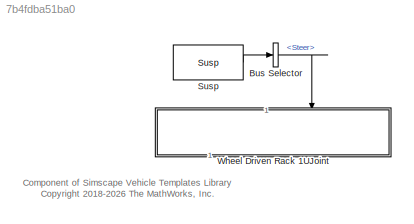
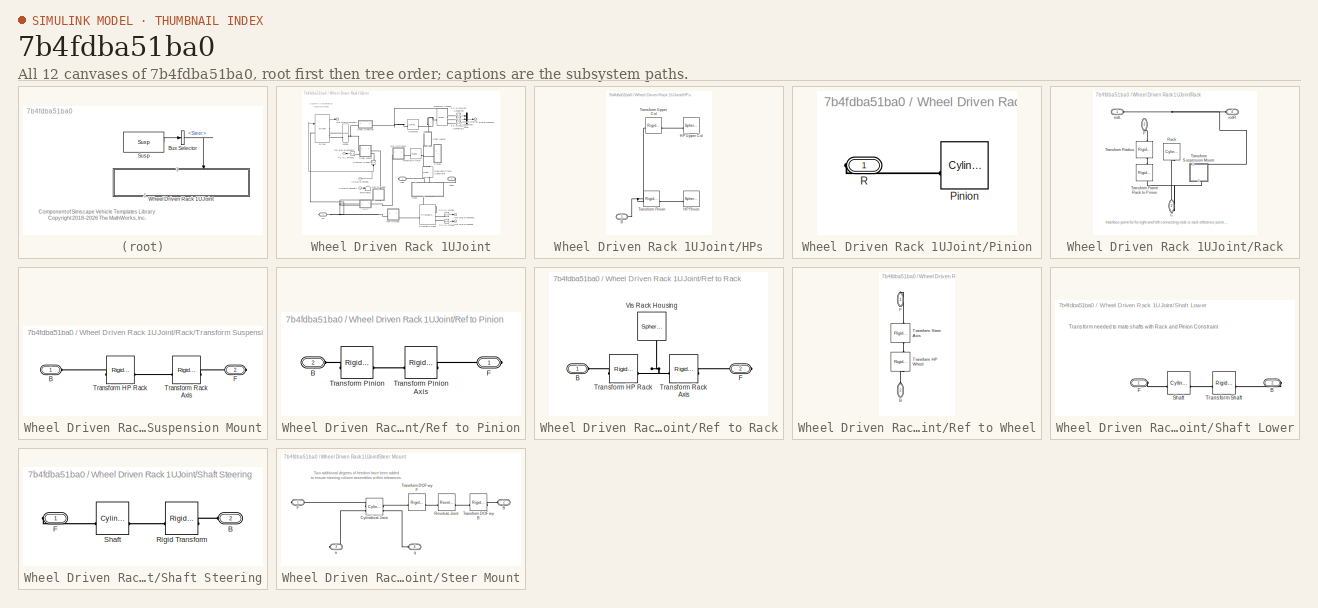
[diagram: thumbnail index - all 12 canvases of the model, root first then tree order]
MODEL slx_7b4fdba51ba0
KIND library
CONFIG AbsTol = auto
CONFIG EnableMultiTasking = off
CONFIG FixedStep = auto
CONFIG MaxStep = auto
CONFIG MinStep = auto
CONFIG RelTol = 1e-3
CONFIG SampleTimeConstraint = Unconstrained
CONFIG SolverName = VariableStepAuto
CONFIG StartTime = 0.0
CONFIG StopTime = 10.0
BLOCK [BusSelector] Bus Selector
  OutputSignals = Steer
BLOCK [Reference] Susp  REF=Vehicle_Inputs/Control Bus/Susp
  SourceBlock = Vehicle_Inputs/Control Bus/Susp
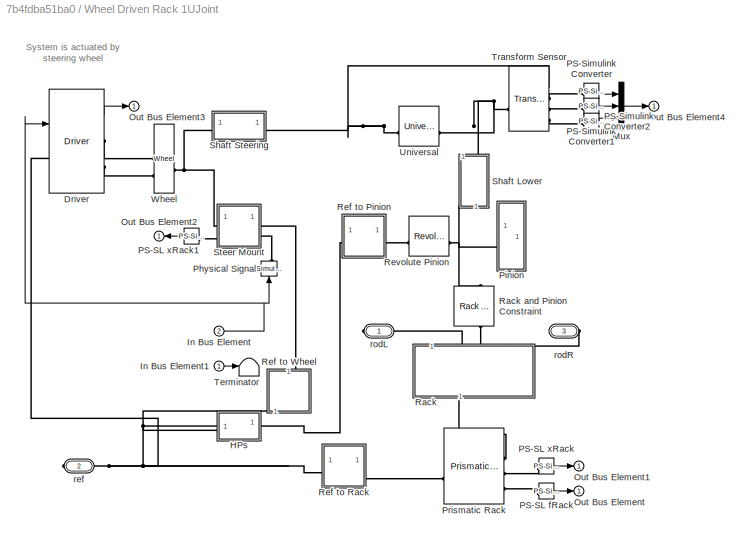
BLOCK [SubSystem] Wheel Driven Rack 1UJoint
  NameLocation = left
  Tag = PublishSubsystem
  VariantControl = Rack
BLOCK [Reference] Wheel Driven Rack 1UJoint/Driver  REF=Linkage/Susp/Linkage/Steer/Wheel
Driven
Rack
1UJoint1/Driver
  AttributesFormatString = %<LabelModeActiveChoice>
  SourceBlock = Linkage/Susp/Linkage/Steer/Wheel\nDriven\nRack\n1UJoint1/Driver
BLOCK [SubSystem] Wheel Driven Rack 1UJoint/HPs
BLOCK [PMIOPort] Wheel Driven Rack 1UJoint/HPs/B
  Side = Left
BLOCK [Reference] Wheel Driven Rack 1UJoint/HPs/HP Pinion  REF=sm_lib/Body Elements/Spherical Solid
  SourceBlock = sm_lib/Body Elements/Spherical Solid
  SourceType = Spherical Solid
BLOCK [Reference] Wheel Driven Rack 1UJoint/HPs/HP Upper Col  REF=sm_lib/Body Elements/Spherical Solid
  SourceBlock = sm_lib/Body Elements/Spherical Solid
  SourceType = Spherical Solid
BLOCK [Reference] Wheel Driven Rack 1UJoint/HPs/Transform Pinion  REF=sm_lib/Frames and
Transforms/Rigid
Transform
  SourceBlock = sm_lib/Frames and\nTransforms/Rigid\nTransform
  SourceType = Rigid\nTransform
BLOCK [Reference] Wheel Driven Rack 1UJoint/HPs/Transform Upper Col  REF=sm_lib/Frames and
Transforms/Rigid
Transform
  SourceBlock = sm_lib/Frames and\nTransforms/Rigid\nTransform
  SourceType = Rigid\nTransform
BLOCK [Inport] Wheel Driven Rack 1UJoint/In Bus Element
  Port = 2
BLOCK [Inport] Wheel Driven Rack 1UJoint/In Bus Element1
BLOCK [Mux] Wheel Driven Rack 1UJoint/Mux
  DisplayOption = bar
  Inputs = 3
BLOCK [Outport] Wheel Driven Rack 1UJoint/Out Bus Element
  VectorParamsAs1DForOutWhenUnconnected = off
BLOCK [Outport] Wheel Driven Rack 1UJoint/Out Bus Element1
  VectorParamsAs1DForOutWhenUnconnected = off
BLOCK [Outport] Wheel Driven Rack 1UJoint/Out Bus Element2
  VectorParamsAs1DForOutWhenUnconnected = off
BLOCK [Outport] Wheel Driven Rack 1UJoint/Out Bus Element3
  VectorParamsAs1DForOutWhenUnconnected = off
BLOCK [Outport] Wheel Driven Rack 1UJoint/Out Bus Element4
  VectorParamsAs1DForOutWhenUnconnected = off
BLOCK [Reference] Wheel Driven Rack 1UJoint/PS-SL fRack  REF=nesl_utility/PS-Simulink
Converter
  SourceBlock = nesl_utility/PS-Simulink\nConverter
  SourceType = PS-Simulink\nConverter
BLOCK [Reference] Wheel Driven Rack 1UJoint/PS-SL xRack  REF=nesl_utility/PS-Simulink
Converter
  SourceBlock = nesl_utility/PS-Simulink\nConverter
  SourceType = PS-Simulink\nConverter
BLOCK [Reference] Wheel Driven Rack 1UJoint/PS-SL xRack1  REF=nesl_utility/PS-Simulink
Converter
  SourceBlock = nesl_utility/PS-Simulink\nConverter
  SourceType = PS-Simulink\nConverter
BLOCK [Reference] Wheel Driven Rack 1UJoint/PS-Simulink Converter  REF=nesl_utility/PS-Simulink
Converter
  SourceBlock = nesl_utility/PS-Simulink\nConverter
  SourceType = PS-Simulink\nConverter
BLOCK [Reference] Wheel Driven Rack 1UJoint/PS-Simulink Converter1  REF=nesl_utility/PS-Simulink
Converter
  SourceBlock = nesl_utility/PS-Simulink\nConverter
  SourceType = PS-Simulink\nConverter
BLOCK [Reference] Wheel Driven Rack 1UJoint/PS-Simulink Converter2  REF=nesl_utility/PS-Simulink
Converter
  SourceBlock = nesl_utility/PS-Simulink\nConverter
  SourceType = PS-Simulink\nConverter
BLOCK [Reference] Wheel Driven Rack 1UJoint/Physical Signal  REF=nesl_utility/Simulink-PS
Converter
  AttributesFormatString = Filter Time Constant\n%<InputFilterTimeConstant> sec
  NameLocation = left
  SourceBlock = nesl_utility/Simulink-PS\nConverter
  SourceType = Simulink-PS\nConverter
BLOCK [SubSystem] Wheel Driven Rack 1UJoint/Pinion
BLOCK [Reference] Wheel Driven Rack 1UJoint/Pinion/Pinion  REF=sm_lib/Body Elements/Cylindrical Solid
  SourceBlock = sm_lib/Body Elements/Cylindrical Solid
  SourceType = Cylindrical Solid
BLOCK [PMIOPort] Wheel Driven Rack 1UJoint/Pinion/R
  Side = Right
BLOCK [Reference] Wheel Driven Rack 1UJoint/Prismatic Rack  REF=sm_lib/Joints/Prismatic
Joint
  SourceBlock = sm_lib/Joints/Prismatic\nJoint
  SourceType = Prismatic\nJoint
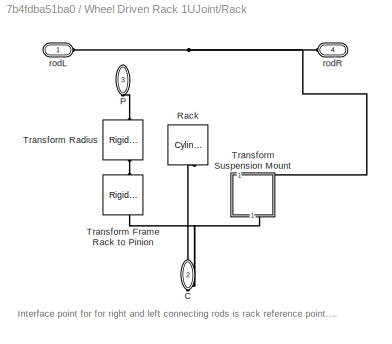
BLOCK [SubSystem] Wheel Driven Rack 1UJoint/Rack
  NameLocation = left
BLOCK [Reference] Wheel Driven Rack 1UJoint/Rack and Pinion Constraint  REF=sm_lib/Gears and
Couplings/Gears/Rack and Pinion
Constraint
  NameLocation = right
  SourceBlock = sm_lib/Gears and\nCouplings/Gears/Rack and Pinion\nConstraint
  SourceType = Rack and Pinion\nConstraint
BLOCK [PMIOPort] Wheel Driven Rack 1UJoint/Rack/C
  NameLocation = left
  Port = 2
  Side = Right
BLOCK [PMIOPort] Wheel Driven Rack 1UJoint/Rack/P
  NameLocation = left
  Port = 3
  Side = Left
BLOCK [Reference] Wheel Driven Rack 1UJoint/Rack/Rack  REF=sm_lib/Body Elements/Cylindrical Solid
  NameLocation = right
  SourceBlock = sm_lib/Body Elements/Cylindrical Solid
  SourceType = Cylindrical Solid
BLOCK [Reference] Wheel Driven Rack 1UJoint/Rack/Transform Frame Rack to Pinion   REF=sm_lib/Frames and
Transforms/Rigid
Transform
  NameLocation = left
  SourceBlock = sm_lib/Frames and\nTransforms/Rigid\nTransform
  SourceType = Rigid\nTransform
BLOCK [Reference] Wheel Driven Rack 1UJoint/Rack/Transform Radius  REF=sm_lib/Frames and
Transforms/Rigid
Transform
  NameLocation = left
  SourceBlock = sm_lib/Frames and\nTransforms/Rigid\nTransform
  SourceType = Rigid\nTransform
BLOCK [SubSystem] Wheel Driven Rack 1UJoint/Rack/Transform Suspension Mount
  NameLocation = right
BLOCK [PMIOPort] Wheel Driven Rack 1UJoint/Rack/Transform Suspension Mount/B
  Side = Left
BLOCK [PMIOPort] Wheel Driven Rack 1UJoint/Rack/Transform Suspension Mount/F
  Port = 2
  Side = Right
BLOCK [Reference] Wheel Driven Rack 1UJoint/Rack/Transform Suspension Mount/Transform HP Rack  REF=sm_lib/Frames and
Transforms/Rigid
Transform
  SourceBlock = sm_lib/Frames and\nTransforms/Rigid\nTransform
  SourceType = Rigid\nTransform
BLOCK [Reference] Wheel Driven Rack 1UJoint/Rack/Transform Suspension Mount/Transform Rack Axis  REF=sm_lib/Frames and
Transforms/Rigid
Transform
  SourceBlock = sm_lib/Frames and\nTransforms/Rigid\nTransform
  SourceType = Rigid\nTransform
BLOCK [PMIOPort] Wheel Driven Rack 1UJoint/Rack/rodL
  Side = Left
BLOCK [PMIOPort] Wheel Driven Rack 1UJoint/Rack/rodR
  Port = 4
  Side = Left
BLOCK [SubSystem] Wheel Driven Rack 1UJoint/Ref to Pinion
BLOCK [PMIOPort] Wheel Driven Rack 1UJoint/Ref to Pinion/B
  Port = 2
  Side = Left
BLOCK [PMIOPort] Wheel Driven Rack 1UJoint/Ref to Pinion/F
  Side = Right
BLOCK [Reference] Wheel Driven Rack 1UJoint/Ref to Pinion/Transform Pinion  REF=sm_lib/Frames and
Transforms/Rigid
Transform
  SourceBlock = sm_lib/Frames and\nTransforms/Rigid\nTransform
  SourceType = Rigid\nTransform
BLOCK [Reference] Wheel Driven Rack 1UJoint/Ref to Pinion/Transform Pinion Axis  REF=sm_lib/Frames and
Transforms/Rigid
Transform
  SourceBlock = sm_lib/Frames and\nTransforms/Rigid\nTransform
  SourceType = Rigid\nTransform
BLOCK [SubSystem] Wheel Driven Rack 1UJoint/Ref to Rack
BLOCK [PMIOPort] Wheel Driven Rack 1UJoint/Ref to Rack/B
  Side = Left
BLOCK [PMIOPort] Wheel Driven Rack 1UJoint/Ref to Rack/F
  Port = 2
  Side = Right
BLOCK [Reference] Wheel Driven Rack 1UJoint/Ref to Rack/Transform HP Rack  REF=sm_lib/Frames and
Transforms/Rigid
Transform
  SourceBlock = sm_lib/Frames and\nTransforms/Rigid\nTransform
  SourceType = Rigid\nTransform
BLOCK [Reference] Wheel Driven Rack 1UJoint/Ref to Rack/Transform Rack Axis  REF=sm_lib/Frames and
Transforms/Rigid
Transform
  SourceBlock = sm_lib/Frames and\nTransforms/Rigid\nTransform
  SourceType = Rigid\nTransform
BLOCK [Reference] Wheel Driven Rack 1UJoint/Ref to Rack/Vis Rack Housing  REF=sm_lib/Body Elements/Spherical Solid
  NameLocation = left
  SourceBlock = sm_lib/Body Elements/Spherical Solid
  SourceType = Spherical Solid
BLOCK [SubSystem] Wheel Driven Rack 1UJoint/Ref to Wheel
  NameLocation = left
BLOCK [PMIOPort] Wheel Driven Rack 1UJoint/Ref to Wheel/B
  NameLocation = right
  Port = 2
  Side = Left
BLOCK [PMIOPort] Wheel Driven Rack 1UJoint/Ref to Wheel/F
  NameLocation = left
  Side = Right
BLOCK [Reference] Wheel Driven Rack 1UJoint/Ref to Wheel/Transform HP Wheel  REF=sm_lib/Frames and
Transforms/Rigid
Transform
  NameLocation = left
  SourceBlock = sm_lib/Frames and\nTransforms/Rigid\nTransform
  SourceType = Rigid\nTransform
BLOCK [Reference] Wheel Driven Rack 1UJoint/Ref to Wheel/Transform Steer Axis  REF=sm_lib/Frames and
Transforms/Rigid
Transform
  NameLocation = left
  SourceBlock = sm_lib/Frames and\nTransforms/Rigid\nTransform
  SourceType = Rigid\nTransform
BLOCK [Reference] Wheel Driven Rack 1UJoint/Revolute Pinion  REF=sm_lib/Joints/Revolute Joint
  SourceBlock = sm_lib/Joints/Revolute Joint
  SourceType = Revolute Joint
BLOCK [SubSystem] Wheel Driven Rack 1UJoint/Shaft Lower
  NameLocation = left
BLOCK [PMIOPort] Wheel Driven Rack 1UJoint/Shaft Lower/B
  Port = 2
  Side = Right
BLOCK [PMIOPort] Wheel Driven Rack 1UJoint/Shaft Lower/F
  Side = Left
BLOCK [Reference] Wheel Driven Rack 1UJoint/Shaft Lower/Shaft  REF=sm_lib/Body Elements/Cylindrical Solid
  SourceBlock = sm_lib/Body Elements/Cylindrical Solid
  SourceType = Cylindrical Solid
BLOCK [Reference] Wheel Driven Rack 1UJoint/Shaft Lower/Transform Shaft  REF=sm_lib/Frames and
Transforms/Rigid
Transform
  SourceBlock = sm_lib/Frames and\nTransforms/Rigid\nTransform
  SourceType = Rigid\nTransform
BLOCK [SubSystem] Wheel Driven Rack 1UJoint/Shaft Steering
BLOCK [PMIOPort] Wheel Driven Rack 1UJoint/Shaft Steering/B
  Port = 2
  Side = Left
BLOCK [PMIOPort] Wheel Driven Rack 1UJoint/Shaft Steering/F
  Side = Right
BLOCK [Reference] Wheel Driven Rack 1UJoint/Shaft Steering/Rigid Transform  REF=sm_lib/Frames and
Transforms/Rigid
Transform
  SourceBlock = sm_lib/Frames and\nTransforms/Rigid\nTransform
  SourceType = Rigid\nTransform
BLOCK [Reference] Wheel Driven Rack 1UJoint/Shaft Steering/Shaft  REF=sm_lib/Body Elements/Cylindrical Solid
  SourceBlock = sm_lib/Body Elements/Cylindrical Solid
  SourceType = Cylindrical Solid
BLOCK [SubSystem] Wheel Driven Rack 1UJoint/Steer Mount
  NameLocation = top
BLOCK [PMIOPort] Wheel Driven Rack 1UJoint/Steer Mount/B
  Port = 2
  Side = Left
BLOCK [Reference] Wheel Driven Rack 1UJoint/Steer Mount/Cylindrical Joint  REF=sm_lib/Joints/Cylindrical
Joint
  SourceBlock = sm_lib/Joints/Cylindrical\nJoint
  SourceType = Cylindrical\nJoint
BLOCK [PMIOPort] Wheel Driven Rack 1UJoint/Steer Mount/F
  Side = Right
BLOCK [Reference] Wheel Driven Rack 1UJoint/Steer Mount/Revolute Joint  REF=sm_lib/Joints/Revolute Joint
  SourceBlock = sm_lib/Joints/Revolute Joint
  SourceType = Revolute Joint
BLOCK [Reference] Wheel Driven Rack 1UJoint/Steer Mount/Transform DOF wy B  REF=sm_lib/Frames and
Transforms/Rigid
Transform
  SourceBlock = sm_lib/Frames and\nTransforms/Rigid\nTransform
  SourceType = Rigid\nTransform
BLOCK [Reference] Wheel Driven Rack 1UJoint/Steer Mount/Transform DOF wy F  REF=sm_lib/Frames and
Transforms/Rigid
Transform
  SourceBlock = sm_lib/Frames and\nTransforms/Rigid\nTransform
  SourceType = Rigid\nTransform
BLOCK [PMIOPort] Wheel Driven Rack 1UJoint/Steer Mount/a
  Port = 3
  Side = Right
BLOCK [PMIOPort] Wheel Driven Rack 1UJoint/Steer Mount/q
  Port = 4
  Side = Left
BLOCK [Terminator] Wheel Driven Rack 1UJoint/Terminator
BLOCK [Reference] Wheel Driven Rack 1UJoint/Transform Sensor  REF=sm_lib/Frames and
Transforms/Transform
Sensor
  SourceBlock = sm_lib/Frames and\nTransforms/Transform\nSensor
  SourceType = Transform\nSensor
BLOCK [Reference] Wheel Driven Rack 1UJoint/Universal  REF=sm_lib/Joints/Universal
Joint
  NameLocation = top
  SourceBlock = sm_lib/Joints/Universal\nJoint
  SourceType = Universal\nJoint
BLOCK [Reference] Wheel Driven Rack 1UJoint/Wheel  REF=SteeringWheel/Wheel
  SourceBlock = SteeringWheel/Wheel
BLOCK [PMIOPort] Wheel Driven Rack 1UJoint/ref
  Port = 2
  Side = Right
BLOCK [PMIOPort] Wheel Driven Rack 1UJoint/rodL
  Side = Right
BLOCK [PMIOPort] Wheel Driven Rack 1UJoint/rodR
  Port = 3
  Side = Right
ANNOTATION (root): Component of Simscape Vehicle Templates Library <copyright redacted>
ANNOTATION Wheel Driven Rack 1UJoint: System is actuated by steering wheel
ANNOTATION Wheel Driven Rack 1UJoint/Rack: Interface point for for right and left connecting rods is rack reference point. This permits the rack subsystem to mate with the connecting rods without knowing where they are, as both systems (rack and linkages) know where the front axle reference point is.
ANNOTATION Wheel Driven Rack 1UJoint/Shaft Lower: Transform needed to mate shafts with Rack and Pinion Constraint
ANNOTATION Wheel Driven Rack 1UJoint/Steer Mount: Two additional degrees of freedom have been added to ensure steering column assembles within tolerances.
LINE Bus Selector:1 -> Wheel Driven Rack 1UJoint:2
LINE Susp:1 -> Bus Selector:1
